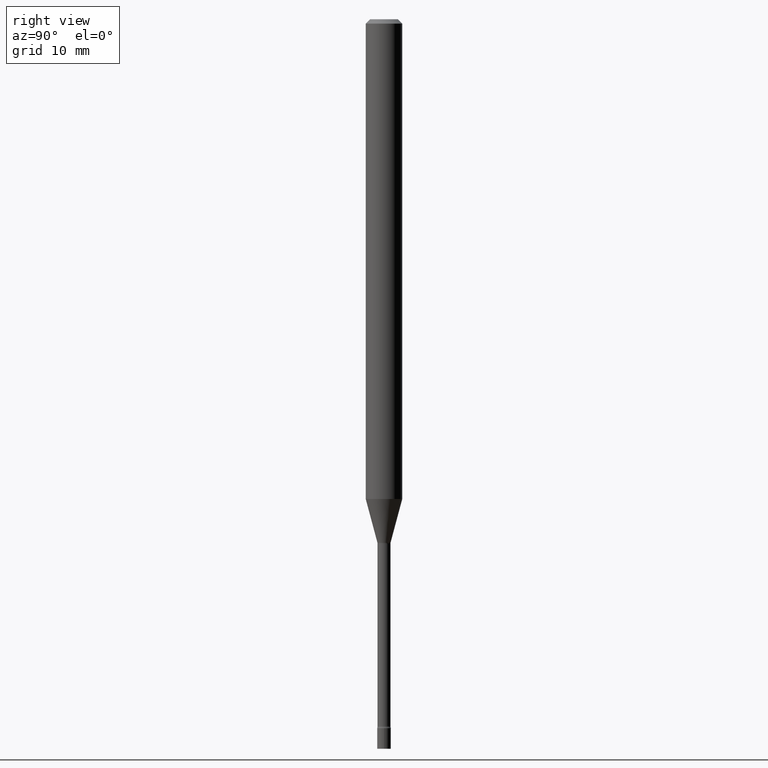
[diagram: clean part render]
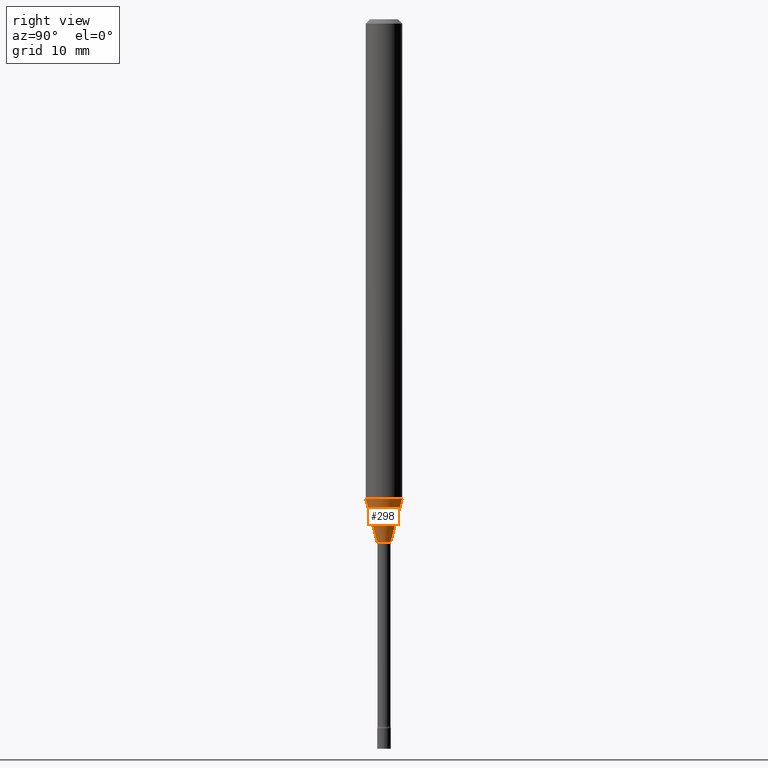
[diagram: same view with one face highlighted and labeled with its STEP entity id]
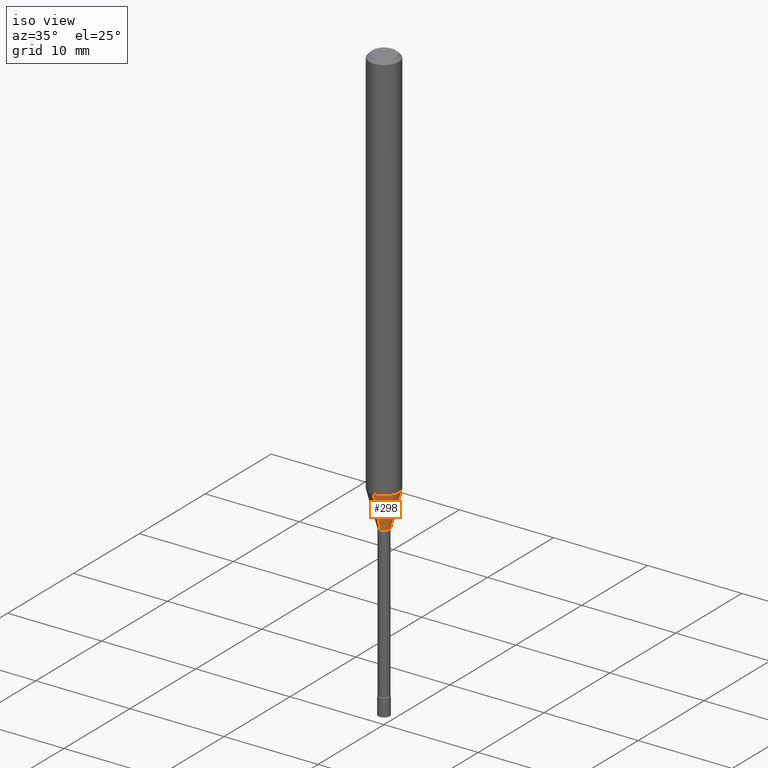
[diagram: same view with one face highlighted and labeled with its STEP entity id]
A machine part, right view. The second image highlights one B-rep face of the part: STEP entity #298.
A second angle (iso view) of the same face is appended — the face is thin or edge-on in the first view.
In plain terms, the highlighted conical surface has half-angle 15 deg.
Its self-contained STEP definition (entity closure, byte-faithful):
#1 = LINE ( 'NONE', #147, #111 ) ;
#4 = CIRCLE ( 'NONE', #86, 0.06250000000000000000 ) ;
#22 = CARTESIAN_POINT ( 'NONE',  ( 4.384932830333767000E-29, -6.260576145416959100E-15, -1.793092501787273196 ) ) ;
#30 = CARTESIAN_POINT ( 'NONE',  ( 4.384932830333767000E-29, -6.260576145416959100E-15, -1.793092501787273196 ) ) ;
#34 = ORIENTED_EDGE ( 'NONE', *, *, #339, .T. ) ;
#70 = DIRECTION ( 'NONE',  ( -6.982962677686265922E-15, -1.000000000000000000, 0.000000000000000000 ) ) ;
#76 = EDGE_CURVE ( 'NONE', #470, #443, #394, .T. ) ;
#86 = AXIS2_PLACEMENT_3D ( 'NONE', #330, #295, #319 ) ;
#111 = VECTOR ( 'NONE', #272, 39.37007874015747433 ) ;
#133 = CARTESIAN_POINT ( 'NONE',  ( -1.578925554262692203E-16, -0.02261111260567024925, -1.793092501787273196 ) ) ;
#147 = CARTESIAN_POINT ( 'NONE',  ( 1.606616180941255974E-16, 0.02261111260565772454, -1.793092501787273196 ) ) ;
#170 = DIRECTION ( 'NONE',  ( -6.982962677686265922E-15, -1.000000000000000000, 0.000000000000000000 ) ) ;
#182 = DIRECTION ( 'NONE',  ( -2.445458238190760089E-29, 3.491496472812585621E-15, 1.000000000000000000 ) ) ;
#186 = FACE_OUTER_BOUND ( 'NONE', #278, .T. ) ;
#214 = LINE ( 'NONE', #133, #396 ) ;
#258 = CARTESIAN_POINT ( 'NONE',  ( -1.578925554262692203E-16, -0.02261111260567024925, -1.793092501787273196 ) ) ;
#272 = DIRECTION ( 'NONE',  ( 1.839019923739599526E-15, 0.2588190451025248473, 0.9659258262890673130 ) ) ;
#278 = EDGE_LOOP ( 'NONE', ( #338, #34, #445, #491 ) ) ;
#288 = VERTEX_POINT ( 'NONE', #420 ) ;
#295 = DIRECTION ( 'NONE',  ( -2.445458238190760089E-29, 3.491496472812585621E-15, 1.000000000000000000 ) ) ;
#298 = ADVANCED_FACE ( 'NONE', ( #186 ), #458, .T. ) ;
#308 = AXIS2_PLACEMENT_3D ( 'NONE', #30, #182, #70 ) ;
#319 = DIRECTION ( 'NONE',  ( -6.982962677686265922E-15, -1.000000000000000000, 4.370956789862821150E-15 ) ) ;
#325 = CARTESIAN_POINT ( 'NONE',  ( 4.440892098501025523E-16, 0.06249999999999423378, -1.644225147374218210 ) ) ;
#330 = CARTESIAN_POINT ( 'NONE',  ( 4.020883932086697995E-29, -5.740806302566835225E-15, -1.644225147374217988 ) ) ;
#332 = DIRECTION ( 'NONE',  ( -2.445458238190760089E-29, 3.491496472812585621E-15, 1.000000000000000000 ) ) ;
#334 = AXIS2_PLACEMENT_3D ( 'NONE', #22, #332, #170 ) ;
#338 = ORIENTED_EDGE ( 'NONE', *, *, #76, .T. ) ;
#339 = EDGE_CURVE ( 'NONE', #443, #403, #1, .T. ) ;
#367 = EDGE_CURVE ( 'NONE', #470, #288, #214, .T. ) ;
#374 = DIRECTION ( 'NONE',  ( -1.807323732225328562E-15, -0.2588190451025179639, 0.9659258262890689783 ) ) ;
#394 = CIRCLE ( 'NONE', #334, 0.02261111260566398690 ) ;
#396 = VECTOR ( 'NONE', #374, 39.37007874015749564 ) ;
#403 = VERTEX_POINT ( 'NONE', #325 ) ;
#420 = CARTESIAN_POINT ( 'NONE',  ( -4.364351673553515854E-16, -0.06250000000000575928, -1.644225147374217544 ) ) ;
#421 = EDGE_CURVE ( 'NONE', #288, #403, #4, .T. ) ;
#443 = VERTEX_POINT ( 'NONE', #459 ) ;
#445 = ORIENTED_EDGE ( 'NONE', *, *, #421, .F. ) ;
#458 = CONICAL_SURFACE ( 'NONE', #308, 0.02261111260566398690, 0.2617993877991501295 ) ;
#459 = CARTESIAN_POINT ( 'NONE',  ( 3.023754139721142721E-16, 0.02261111260565773148, -1.793092501787273196 ) ) ;
#470 = VERTEX_POINT ( 'NONE', #258 ) ;
#491 = ORIENTED_EDGE ( 'NONE', *, *, #367, .F. ) ;